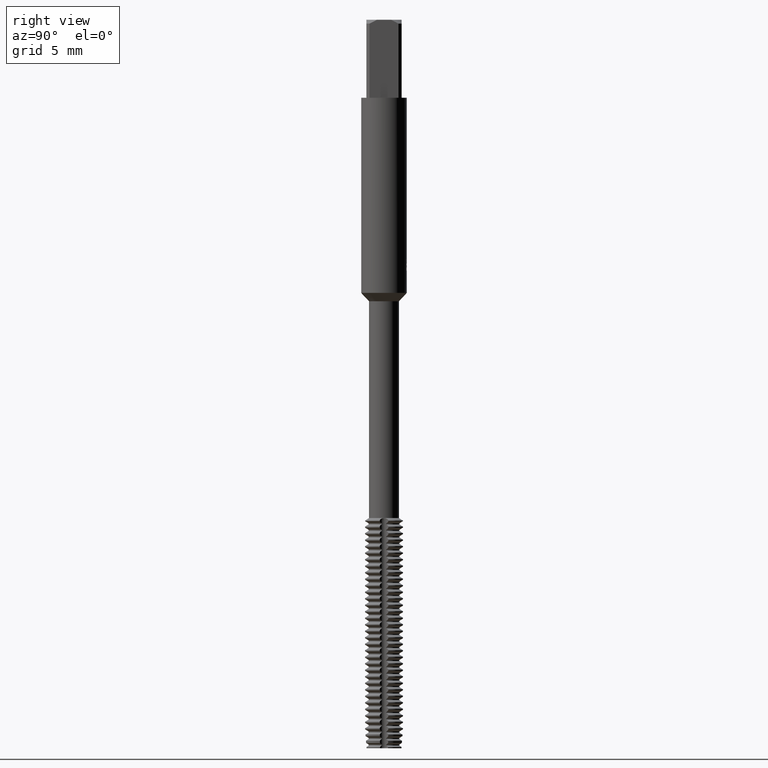
[diagram: clean part render]
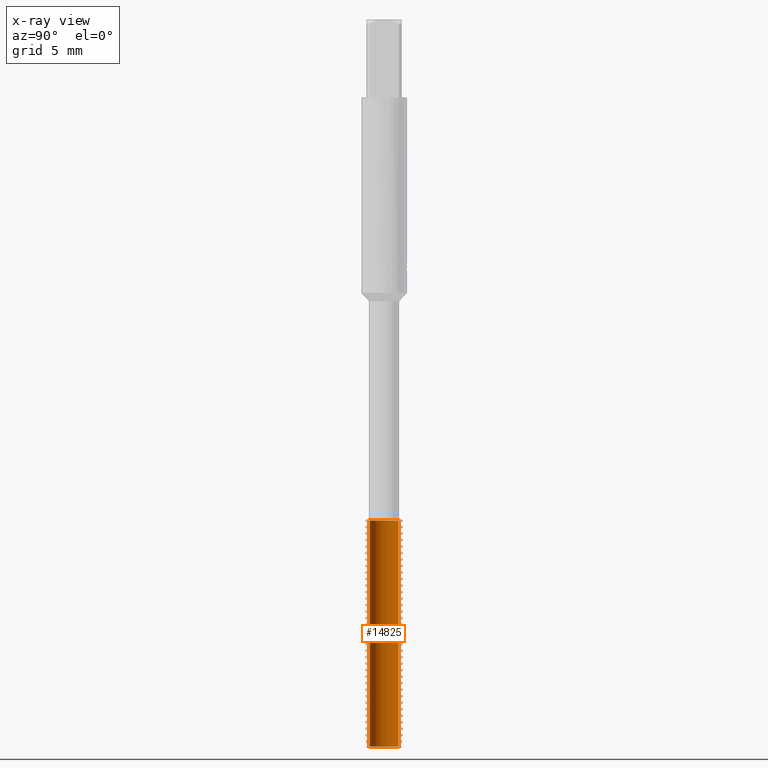
[diagram: x-ray — body ghosted, one internal face saturated and labeled with its STEP entity id]
A machine part, right view, then the same camera in x-ray: the body is ghosted and one INTERNAL B-rep face — a face not visible from any outside direction — is saturated and labeled: STEP entity #14825.
In plain terms, the highlighted cylindrical surface (edge-blend (fillet) strip) has radius 1.1064 mm, axis along (-0, -0, 1).
Its self-contained STEP definition (entity closure, byte-faithful):
#6821=EDGE_CURVE('',#15953,#13355,#17775,.T.);
#7503=VERTEX_POINT('',#18515);
#9179=VERTEX_POINT('',#20342);
#11963=EDGE_CURVE('',#9179,#15953,#23353,.T.);
#12041=EDGE_CURVE('',#7503,#13355,#23437,.T.);
#13355=VERTEX_POINT('',#24862);
#13927=EDGE_CURVE('',#7503,#9179,#25486,.T.);
#14825=ADVANCED_FACE('',(#26458),#26459,.T.);
#15953=VERTEX_POINT('',#27681);
#17775=LINE('',#30919,#30920);
#18515=CARTESIAN_POINT('',(1.35494164279495E-016,-1.106430355,-55.8804250900429));
#20342=CARTESIAN_POINT('',(1.35494164279495E-016,-1.106430355,-38.5));
#23353=CIRCLE('',#41329,1.106430355);
#23437=CIRCLE('',#41490,1.106430355);
#24862=CARTESIAN_POINT('',(0.0,1.106430355,-55.8804250900429));
#25486=LINE('',#45296,#45297);
#26458=FACE_OUTER_BOUND('',#47184,.T.);
#26459=CYLINDRICAL_SURFACE('',#47185,1.106430355);
#27681=CARTESIAN_POINT('',(0.0,1.106430355,-38.5));
#30919=CARTESIAN_POINT('',(-1.35494164279495E-016,1.106430355,-47.1902125450214));
#30920=VECTOR('',#51881,1.0);
#41329=AXIS2_PLACEMENT_3D('',#57293,#57294,#57295);
#41490=AXIS2_PLACEMENT_3D('',#57361,#57362,#57363);
#45296=CARTESIAN_POINT('',(1.35494164279495E-016,-1.106430355,-47.1902125450214));
#45297=VECTOR('',#59626,1.0);
#47184=EDGE_LOOP('',(#60561,#60562,#60563,#60564));
#47185=AXIS2_PLACEMENT_3D('',#60565,#60566,#60567);
#51881=DIRECTION('',(0.0,0.0,-1.0));
#57293=CARTESIAN_POINT('',(0.0,0.0,-38.5));
#57294=DIRECTION('',(0.0,0.0,-1.0));
#57295=DIRECTION('',(0.0,1.0,0.0));
#57361=CARTESIAN_POINT('',(0.0,0.0,-55.8804250900429));
#57362=DIRECTION('',(0.0,0.0,-1.0));
#57363=DIRECTION('',(0.0,1.0,0.0));
#59626=DIRECTION('',(-0.0,-0.0,1.0));
#60561=ORIENTED_EDGE('',*,*,#6821,.T.);
#60562=ORIENTED_EDGE('',*,*,#12041,.F.);
#60563=ORIENTED_EDGE('',*,*,#13927,.T.);
#60564=ORIENTED_EDGE('',*,*,#11963,.T.);
#60565=CARTESIAN_POINT('',(0.0,0.0,-47.1902125450214));
#60566=DIRECTION('',(-0.0,-0.0,1.0));
#60567=DIRECTION('',(0.0,1.0,0.0));